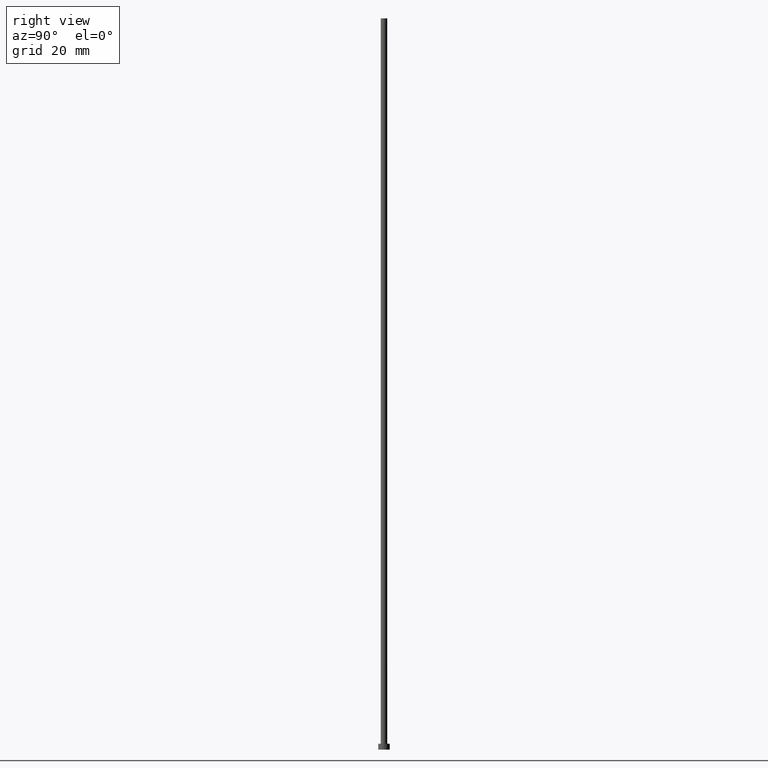
[diagram: clean part render]
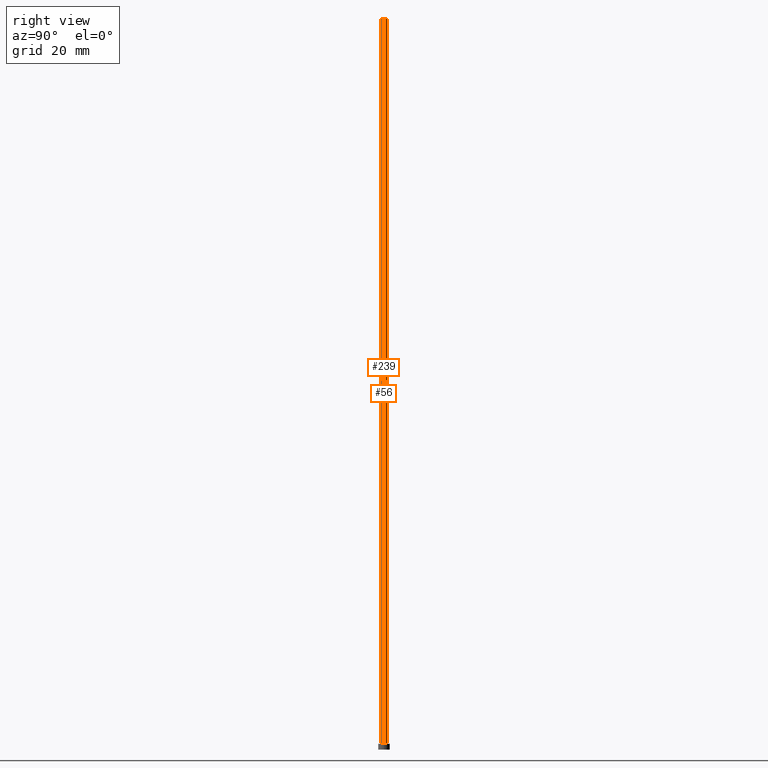
[diagram: same view with one multi-face feature highlighted, each face labeled with its STEP entity id]
A machine part, right view. The highlighted faces form ONE feature: a constant-radius fillet chain: 2 tangent blend faces with common blend radius 1.1 mm. The faces share edges in the B-rep.
Their STEP definitions:
[1] entity #56 (Cylinder):
#8 = VERTEX_POINT ( 'NONE', #164 ) ;
#15 = DIRECTION ( 'NONE',  ( -0.000000000000000000, -0.000000000000000000, -1.000000000000000000 ) ) ;
#20 = CIRCLE ( 'NONE', #157, 1.100000000000000089 ) ;
#32 = CYLINDRICAL_SURFACE ( 'NONE', #94, 1.100000000000000089 ) ;
#33 = VERTEX_POINT ( 'NONE', #231 ) ;
#36 = EDGE_CURVE ( 'NONE', #82, #8, #228, .T. ) ;
#49 = DIRECTION ( 'NONE',  ( 0.000000000000000000, 0.000000000000000000, 1.000000000000000000 ) ) ;
#52 = CIRCLE ( 'NONE', #131, 1.100000000000000089 ) ;
#56 = ADVANCED_FACE ( 'NONE', ( #135 ), #32, .T. ) ;
#79 = VECTOR ( 'NONE', #15, 1000.000000000000000 ) ;
#82 = VERTEX_POINT ( 'NONE', #99 ) ;
#84 = DIRECTION ( 'NONE',  ( 1.000000000000000000, 0.000000000000000000, 0.000000000000000000 ) ) ;
#91 = ORIENTED_EDGE ( 'NONE', *, *, #165, .T. ) ;
#94 = AXIS2_PLACEMENT_3D ( 'NONE', #193, #161, #247 ) ;
#95 = DIRECTION ( 'NONE',  ( 1.000000000000000000, 0.000000000000000000, 0.000000000000000000 ) ) ;
#99 = CARTESIAN_POINT ( 'NONE',  ( -1.100000000000000089, 0.000000000000000000, 250.0000000000000000 ) ) ;
#103 = CARTESIAN_POINT ( 'NONE',  ( 0.000000000000000000, 0.000000000000000000, 250.0000000000000000 ) ) ;
#110 = VERTEX_POINT ( 'NONE', #141 ) ;
#117 = CARTESIAN_POINT ( 'NONE',  ( 0.000000000000000000, 0.000000000000000000, 2.000000000000000000 ) ) ;
#130 = ORIENTED_EDGE ( 'NONE', *, *, #174, .T. ) ;
#131 = AXIS2_PLACEMENT_3D ( 'NONE', #103, #49, #95 ) ;
#135 = FACE_OUTER_BOUND ( 'NONE', #143, .T. ) ;
#141 = CARTESIAN_POINT ( 'NONE',  ( 1.100000000000000089, 1.347111479062088503E-16, 2.000000000000000000 ) ) ;
#143 = EDGE_LOOP ( 'NONE', ( #152, #91, #130, #242 ) ) ;
#152 = ORIENTED_EDGE ( 'NONE', *, *, #206, .F. ) ;
#157 = AXIS2_PLACEMENT_3D ( 'NONE', #117, #198, #84 ) ;
#161 = DIRECTION ( 'NONE',  ( -0.000000000000000000, -0.000000000000000000, -1.000000000000000000 ) ) ;
#164 = CARTESIAN_POINT ( 'NONE',  ( -1.100000000000000089, 0.000000000000000000, 2.000000000000000000 ) ) ;
#165 = EDGE_CURVE ( 'NONE', #33, #110, #185, .T. ) ;
#168 = CARTESIAN_POINT ( 'NONE',  ( -1.100000000000000089, 0.000000000000000000, 250.0000000000000000 ) ) ;
#174 = EDGE_CURVE ( 'NONE', #110, #8, #20, .T. ) ;
#185 = LINE ( 'NONE', #244, #79 ) ;
#193 = CARTESIAN_POINT ( 'NONE',  ( 0.000000000000000000, 0.000000000000000000, 250.0000000000000000 ) ) ;
#198 = DIRECTION ( 'NONE',  ( 0.000000000000000000, 0.000000000000000000, 1.000000000000000000 ) ) ;
#205 = DIRECTION ( 'NONE',  ( -0.000000000000000000, -0.000000000000000000, -1.000000000000000000 ) ) ;
#206 = EDGE_CURVE ( 'NONE', #33, #82, #52, .T. ) ;
#217 = VECTOR ( 'NONE', #205, 1000.000000000000000 ) ;
#228 = LINE ( 'NONE', #168, #217 ) ;
#231 = CARTESIAN_POINT ( 'NONE',  ( 1.100000000000000089, 1.347111479062088503E-16, 250.0000000000000000 ) ) ;
#242 = ORIENTED_EDGE ( 'NONE', *, *, #36, .F. ) ;
#244 = CARTESIAN_POINT ( 'NONE',  ( 1.100000000000000089, 1.347111479062088503E-16, 250.0000000000000000 ) ) ;
#247 = DIRECTION ( 'NONE',  ( -1.000000000000000000, 0.000000000000000000, 0.000000000000000000 ) ) ;
[2] entity #239 (Cylinder):
#1 = AXIS2_PLACEMENT_3D ( 'NONE', #251, #83, #58 ) ;
#8 = VERTEX_POINT ( 'NONE', #164 ) ;
#14 = ORIENTED_EDGE ( 'NONE', *, *, #129, .T. ) ;
#15 = DIRECTION ( 'NONE',  ( -0.000000000000000000, -0.000000000000000000, -1.000000000000000000 ) ) ;
#16 = ORIENTED_EDGE ( 'NONE', *, *, #87, .F. ) ;
#33 = VERTEX_POINT ( 'NONE', #231 ) ;
#35 = DIRECTION ( 'NONE',  ( 0.000000000000000000, 0.000000000000000000, 1.000000000000000000 ) ) ;
#36 = EDGE_CURVE ( 'NONE', #82, #8, #228, .T. ) ;
#51 = DIRECTION ( 'NONE',  ( -1.000000000000000000, 0.000000000000000000, 0.000000000000000000 ) ) ;
#58 = DIRECTION ( 'NONE',  ( 1.000000000000000000, 0.000000000000000000, 0.000000000000000000 ) ) ;
#61 = ORIENTED_EDGE ( 'NONE', *, *, #165, .F. ) ;
#65 = DIRECTION ( 'NONE',  ( -0.000000000000000000, -0.000000000000000000, -1.000000000000000000 ) ) ;
#66 = FACE_OUTER_BOUND ( 'NONE', #85, .T. ) ;
#68 = CARTESIAN_POINT ( 'NONE',  ( 0.000000000000000000, 0.000000000000000000, 250.0000000000000000 ) ) ;
#79 = VECTOR ( 'NONE', #15, 1000.000000000000000 ) ;
#82 = VERTEX_POINT ( 'NONE', #99 ) ;
#83 = DIRECTION ( 'NONE',  ( 0.000000000000000000, 0.000000000000000000, 1.000000000000000000 ) ) ;
#85 = EDGE_LOOP ( 'NONE', ( #61, #16, #187, #14 ) ) ;
#87 = EDGE_CURVE ( 'NONE', #82, #33, #255, .T. ) ;
#99 = CARTESIAN_POINT ( 'NONE',  ( -1.100000000000000089, 0.000000000000000000, 250.0000000000000000 ) ) ;
#100 = DIRECTION ( 'NONE',  ( 1.000000000000000000, 0.000000000000000000, 0.000000000000000000 ) ) ;
#107 = AXIS2_PLACEMENT_3D ( 'NONE', #68, #65, #51 ) ;
#110 = VERTEX_POINT ( 'NONE', #141 ) ;
#115 = CIRCLE ( 'NONE', #1, 1.100000000000000089 ) ;
#129 = EDGE_CURVE ( 'NONE', #8, #110, #115, .T. ) ;
#141 = CARTESIAN_POINT ( 'NONE',  ( 1.100000000000000089, 1.347111479062088503E-16, 2.000000000000000000 ) ) ;
#148 = AXIS2_PLACEMENT_3D ( 'NONE', #201, #35, #100 ) ;
#164 = CARTESIAN_POINT ( 'NONE',  ( -1.100000000000000089, 0.000000000000000000, 2.000000000000000000 ) ) ;
#165 = EDGE_CURVE ( 'NONE', #33, #110, #185, .T. ) ;
#168 = CARTESIAN_POINT ( 'NONE',  ( -1.100000000000000089, 0.000000000000000000, 250.0000000000000000 ) ) ;
#185 = LINE ( 'NONE', #244, #79 ) ;
#187 = ORIENTED_EDGE ( 'NONE', *, *, #36, .T. ) ;
#201 = CARTESIAN_POINT ( 'NONE',  ( 0.000000000000000000, 0.000000000000000000, 250.0000000000000000 ) ) ;
#205 = DIRECTION ( 'NONE',  ( -0.000000000000000000, -0.000000000000000000, -1.000000000000000000 ) ) ;
#217 = VECTOR ( 'NONE', #205, 1000.000000000000000 ) ;
#221 = CYLINDRICAL_SURFACE ( 'NONE', #107, 1.100000000000000089 ) ;
#228 = LINE ( 'NONE', #168, #217 ) ;
#231 = CARTESIAN_POINT ( 'NONE',  ( 1.100000000000000089, 1.347111479062088503E-16, 250.0000000000000000 ) ) ;
#239 = ADVANCED_FACE ( 'NONE', ( #66 ), #221, .T. ) ;
#244 = CARTESIAN_POINT ( 'NONE',  ( 1.100000000000000089, 1.347111479062088503E-16, 250.0000000000000000 ) ) ;
#251 = CARTESIAN_POINT ( 'NONE',  ( 0.000000000000000000, 0.000000000000000000, 2.000000000000000000 ) ) ;
#255 = CIRCLE ( 'NONE', #148, 1.100000000000000089 ) ;